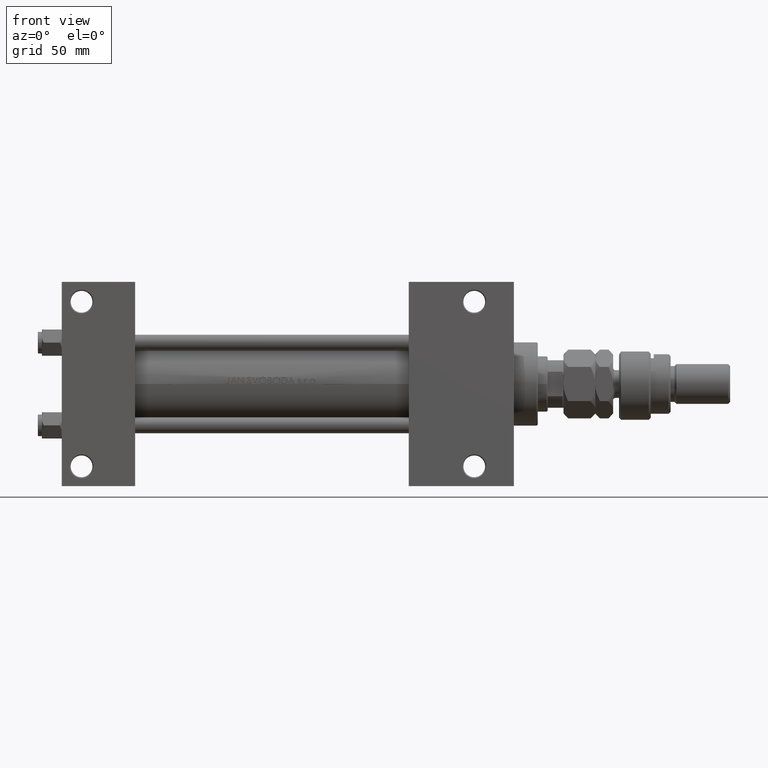
[diagram: clean part render]
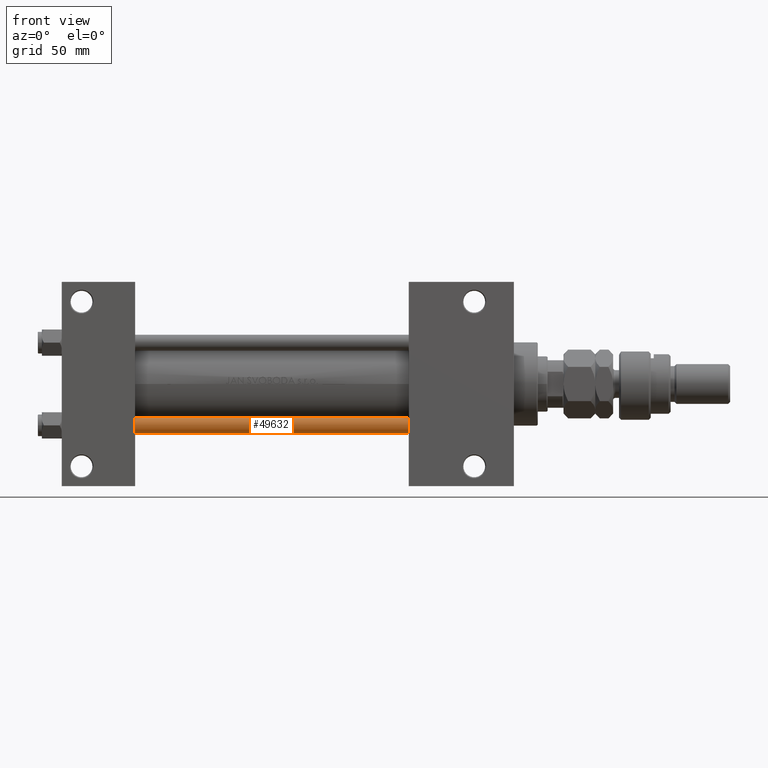
[diagram: same view with one face highlighted and labeled with its STEP entity id]
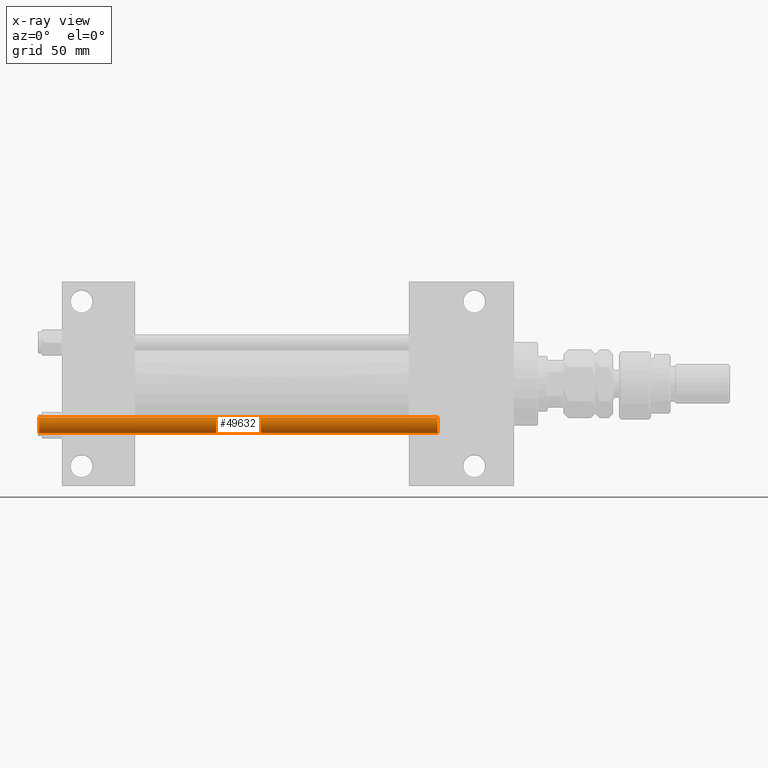
[diagram: x-ray of the same camera — body ghosted, the highlighted face saturated]
A machine part, front view. The second image highlights one B-rep face of the part: STEP entity #49632.
The next image is the same camera in x-ray: the body ghosted, the highlighted face saturated — about 0% of this face is hidden behind the body in this view.
In plain terms, the highlighted cylindrical surface (edge-blend (fillet) strip) has radius 4 mm, axis along (-1, 0, 0).
Its self-contained STEP definition (entity closure, byte-faithful):
#951 = CARTESIAN_POINT ( 'NONE',  ( 4.000000000000000000, 4.898587196589412829E-16, 201.5000000000000000 ) ) ;
#1894 = CYLINDRICAL_SURFACE ( 'NONE', #24242, 4.000000000000000000 ) ;
#2143 = FACE_OUTER_BOUND ( 'NONE', #50952, .T. ) ;
#2165 = EDGE_CURVE ( 'NONE', #7996, #49024, #12260, .T. ) ;
#2524 = DIRECTION ( 'NONE',  ( -0.000000000000000000, -0.000000000000000000, 1.000000000000000000 ) ) ;
#7996 = VERTEX_POINT ( 'NONE', #10435 ) ;
#10435 = CARTESIAN_POINT ( 'NONE',  ( 4.000000000000000000, 4.898587196589412829E-16, 0.5000000000000004441 ) ) ;
#11125 = DIRECTION ( 'NONE',  ( 0.000000000000000000, 0.000000000000000000, -1.000000000000000000 ) ) ;
#11837 = EDGE_CURVE ( 'NONE', #21885, #49024, #15778, .T. ) ;
#12236 = CIRCLE ( 'NONE', #38367, 4.000000000000000000 ) ;
#12260 = CIRCLE ( 'NONE', #40890, 4.000000000000000000 ) ;
#12335 = CARTESIAN_POINT ( 'NONE',  ( -4.000000000000000000, 0.000000000000000000, 202.0000000000000000 ) ) ;
#14148 = VECTOR ( 'NONE', #35810, 1000.000000000000000 ) ;
#14843 = CARTESIAN_POINT ( 'NONE',  ( -4.000000000000000000, 0.000000000000000000, 201.5000000000000000 ) ) ;
#15778 = LINE ( 'NONE', #12335, #14148 ) ;
#17060 = CARTESIAN_POINT ( 'NONE',  ( 4.000000000000000000, 4.898587196589412829E-16, 202.0000000000000000 ) ) ;
#17991 = CARTESIAN_POINT ( 'NONE',  ( 0.000000000000000000, 0.000000000000000000, 202.0000000000000000 ) ) ;
#18249 = DIRECTION ( 'NONE',  ( -0.000000000000000000, -0.000000000000000000, -1.000000000000000000 ) ) ;
#18624 = DIRECTION ( 'NONE',  ( 1.000000000000000000, 0.000000000000000000, 0.000000000000000000 ) ) ;
#19301 = CARTESIAN_POINT ( 'NONE',  ( 0.000000000000000000, 0.000000000000000000, 201.5000000000000000 ) ) ;
#20196 = VECTOR ( 'NONE', #45272, 1000.000000000000000 ) ;
#21885 = VERTEX_POINT ( 'NONE', #14843 ) ;
#22650 = ORIENTED_EDGE ( 'NONE', *, *, #2165, .T. ) ;
#24242 = AXIS2_PLACEMENT_3D ( 'NONE', #17991, #18249, #42762 ) ;
#24686 = ORIENTED_EDGE ( 'NONE', *, *, #11837, .F. ) ;
#26515 = EDGE_CURVE ( 'NONE', #34384, #7996, #28920, .T. ) ;
#28920 = LINE ( 'NONE', #17060, #20196 ) ;
#29490 = ORIENTED_EDGE ( 'NONE', *, *, #42362, .T. ) ;
#34384 = VERTEX_POINT ( 'NONE', #951 ) ;
#35276 = CARTESIAN_POINT ( 'NONE',  ( -4.000000000000000000, 0.000000000000000000, 0.5000000000000004441 ) ) ;
#35810 = DIRECTION ( 'NONE',  ( -0.000000000000000000, -0.000000000000000000, -1.000000000000000000 ) ) ;
#38367 = AXIS2_PLACEMENT_3D ( 'NONE', #19301, #11125, #47776 ) ;
#40890 = AXIS2_PLACEMENT_3D ( 'NONE', #42887, #2524, #18624 ) ;
#42362 = EDGE_CURVE ( 'NONE', #21885, #34384, #12236, .T. ) ;
#42762 = DIRECTION ( 'NONE',  ( -1.000000000000000000, 0.000000000000000000, 0.000000000000000000 ) ) ;
#42887 = CARTESIAN_POINT ( 'NONE',  ( 0.000000000000000000, 0.000000000000000000, 0.5000000000000004441 ) ) ;
#45272 = DIRECTION ( 'NONE',  ( -0.000000000000000000, -0.000000000000000000, -1.000000000000000000 ) ) ;
#47776 = DIRECTION ( 'NONE',  ( 1.000000000000000000, 0.000000000000000000, 0.000000000000000000 ) ) ;
#48242 = ORIENTED_EDGE ( 'NONE', *, *, #26515, .T. ) ;
#49024 = VERTEX_POINT ( 'NONE', #35276 ) ;
#49632 = ADVANCED_FACE ( 'NONE', ( #2143 ), #1894, .T. ) ;
#50952 = EDGE_LOOP ( 'NONE', ( #29490, #48242, #22650, #24686 ) ) ;